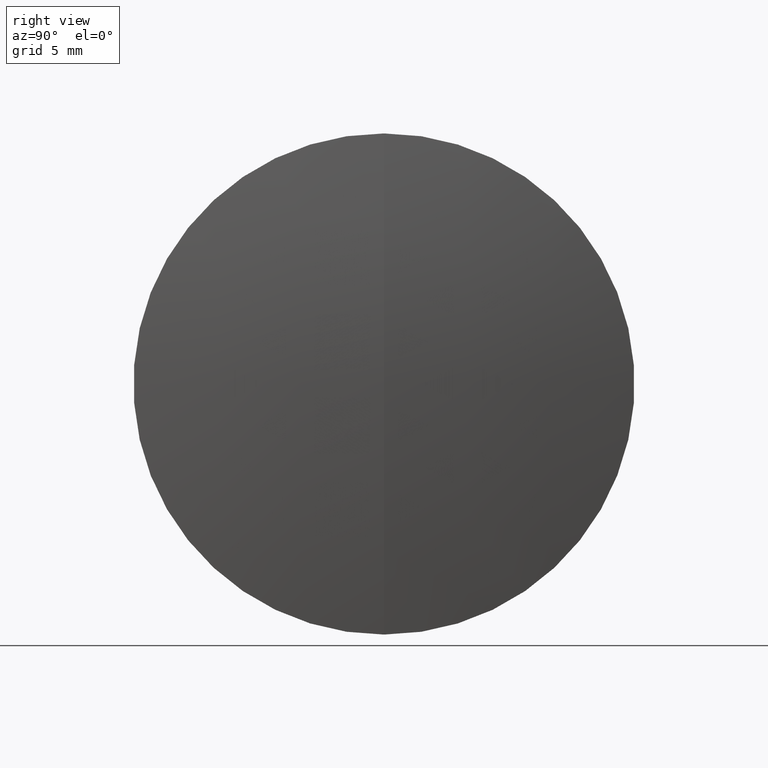
[diagram: clean part render]
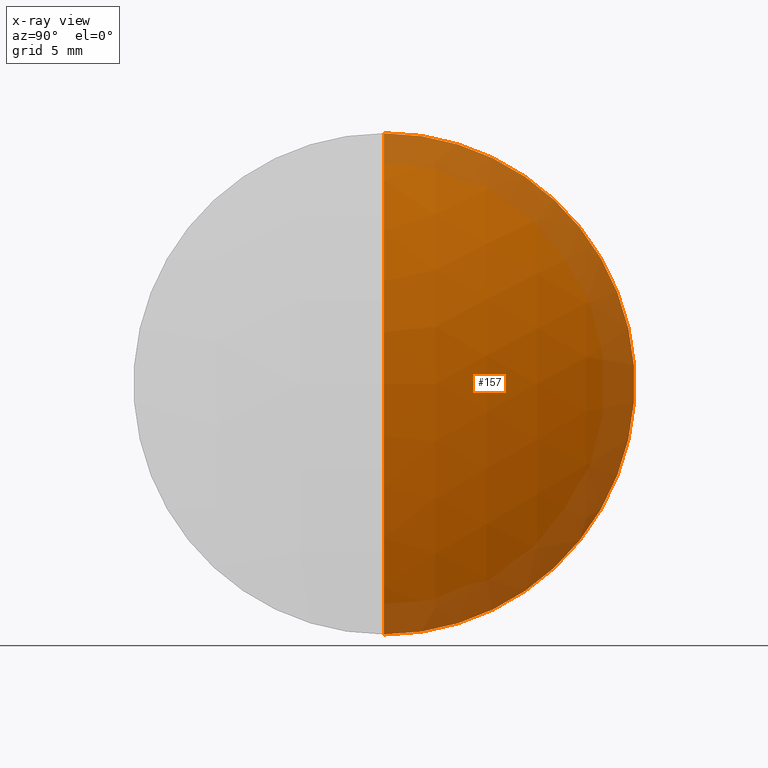
[diagram: x-ray — body ghosted, one internal face saturated and labeled with its STEP entity id]
A machine part, right view, then the same camera in x-ray: the body is ghosted and one INTERNAL B-rep face — a face not visible from any outside direction — is saturated and labeled: STEP entity #157.
In plain terms, the highlighted spherical surface has radius 29.466 mm.
Its self-contained STEP definition (entity closure, byte-faithful):
#6 = CARTESIAN_POINT ( 'NONE',  ( 41.56290633338549200, 1.530808498934191500E-015, -12.50000000000000000 ) ) ;
#13 = DIRECTION ( 'NONE',  ( 0.0000000000000000000, -1.000000000000000000, 0.0000000000000000000 ) ) ;
#21 = AXIS2_PLACEMENT_3D ( 'NONE', #67, #122, #124 ) ;
#45 = SPHERICAL_SURFACE ( 'NONE', #46, 29.46600000000000800 ) ;
#46 = AXIS2_PLACEMENT_3D ( 'NONE', #258, #62, #167 ) ;
#50 = DIRECTION ( 'NONE',  ( 0.0000000000000000000, -1.224646799147353200E-016, 1.000000000000000000 ) ) ;
#57 = CIRCLE ( 'NONE', #259, 29.46600000000000800 ) ;
#59 = CARTESIAN_POINT ( 'NONE',  ( 41.56290633338549200, 0.0000000000000000000, 12.50000000000000000 ) ) ;
#62 = DIRECTION ( 'NONE',  ( 0.0000000000000000000, 1.000000000000000000, 0.0000000000000000000 ) ) ;
#67 = CARTESIAN_POINT ( 'NONE',  ( 41.56290633338549200, 0.0000000000000000000, 0.0000000000000000000 ) ) ;
#74 = AXIS2_PLACEMENT_3D ( 'NONE', #106, #257, #50 ) ;
#99 = EDGE_CURVE ( 'NONE', #283, #179, #123, .T. ) ;
#106 = CARTESIAN_POINT ( 'NONE',  ( 14.87966897357473400, 0.0000000000000000000, 1.355252715606880500E-017 ) ) ;
#122 = DIRECTION ( 'NONE',  ( -1.000000000000000000, -0.0000000000000000000, -0.0000000000000000000 ) ) ;
#123 = CIRCLE ( 'NONE', #74, 29.46600000000000800 ) ;
#124 = DIRECTION ( 'NONE',  ( 0.0000000000000000000, 0.0000000000000000000, 1.000000000000000000 ) ) ;
#139 = CIRCLE ( 'NONE', #21, 12.50000000000000000 ) ;
#157 = ADVANCED_FACE ( 'NONE', ( #190 ), #45, .T. ) ;
#167 = DIRECTION ( 'NONE',  ( 0.0000000000000000000, 0.0000000000000000000, 1.000000000000000000 ) ) ;
#177 = ORIENTED_EDGE ( 'NONE', *, *, #199, .F. ) ;
#179 = VERTEX_POINT ( 'NONE', #6 ) ;
#184 = VERTEX_POINT ( 'NONE', #59 ) ;
#190 = FACE_OUTER_BOUND ( 'NONE', #289, .T. ) ;
#199 = EDGE_CURVE ( 'NONE', #184, #179, #139, .T. ) ;
#236 = EDGE_CURVE ( 'NONE', #283, #184, #57, .T. ) ;
#244 = ORIENTED_EDGE ( 'NONE', *, *, #99, .T. ) ;
#257 = DIRECTION ( 'NONE',  ( -0.0000000000000000000, 1.000000000000000000, 1.224646799147353200E-016 ) ) ;
#258 = CARTESIAN_POINT ( 'NONE',  ( 14.87966897357473400, 0.0000000000000000000, 1.355252715606880500E-017 ) ) ;
#259 = AXIS2_PLACEMENT_3D ( 'NONE', #328, #13, #296 ) ;
#280 = ORIENTED_EDGE ( 'NONE', *, *, #236, .F. ) ;
#283 = VERTEX_POINT ( 'NONE', #316 ) ;
#289 = EDGE_LOOP ( 'NONE', ( #280, #244, #177 ) ) ;
#296 = DIRECTION ( 'NONE',  ( 0.0000000000000000000, 0.0000000000000000000, -1.000000000000000000 ) ) ;
#316 = CARTESIAN_POINT ( 'NONE',  ( 44.34566897357473900, 0.0000000000000000000, 1.817824656339864800E-015 ) ) ;
#328 = CARTESIAN_POINT ( 'NONE',  ( 14.87966897357473400, 0.0000000000000000000, 1.355252715606880500E-017 ) ) ;